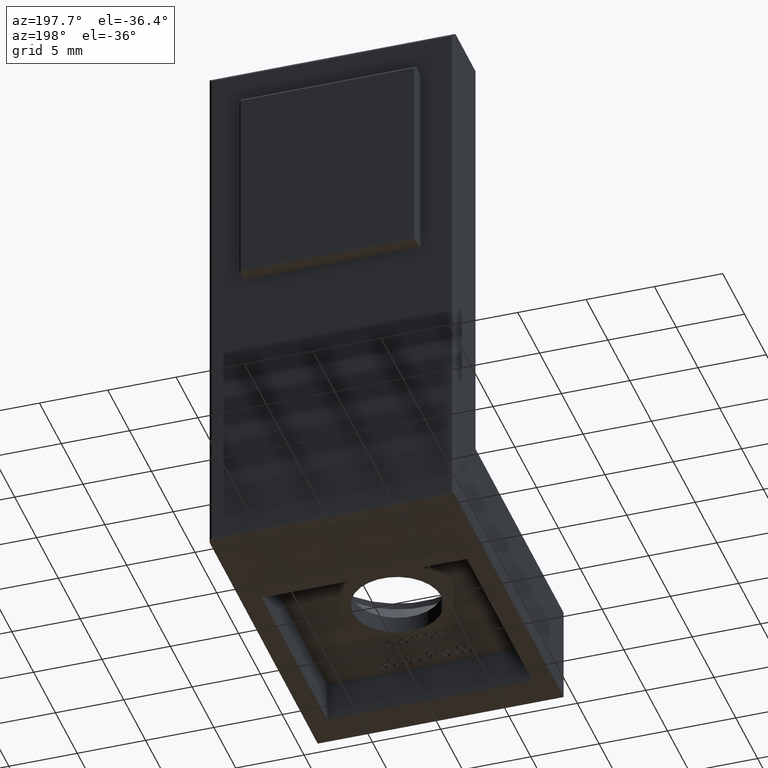
[diagram: clean part render]
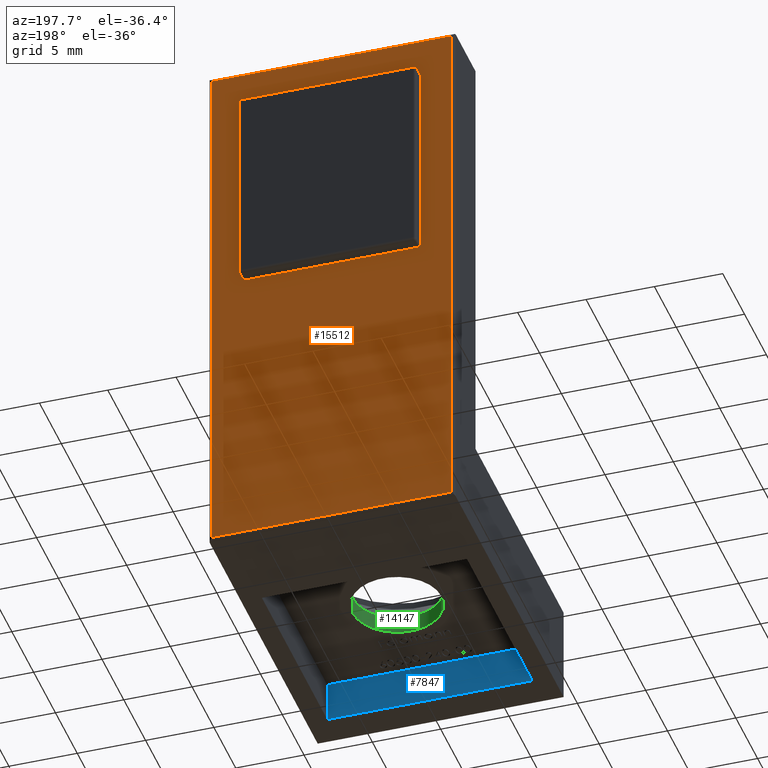
[diagram: same view with three faces highlighted in distinct colors, each labeled with its STEP entity id]
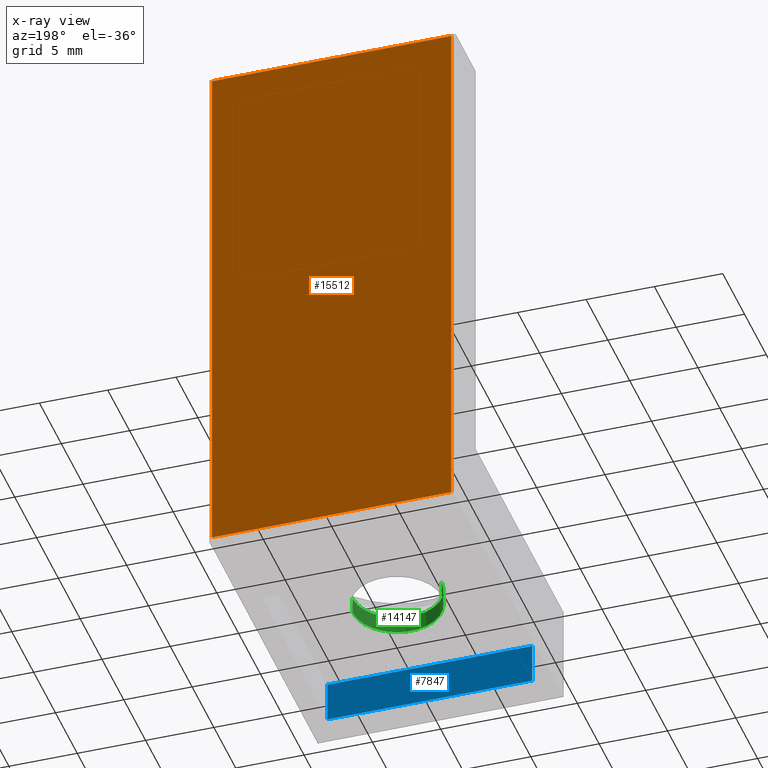
[diagram: x-ray of the same camera — body ghosted, the three highlighted faces saturated]
A machine part, auxiliary view with three faces highlighted in distinct colors.
The next image is the same camera in x-ray (body ghosted, the three faces saturated) — at least one of them is partly hidden behind the body in this view.
Their STEP definitions:

[orange] entity #15512 — the highlighted planar face has unit normal (0, -1, 0).
#397 = LINE ( 'NONE', #1953, #8488 ) ;
#896 = ORIENTED_EDGE ( 'NONE', *, *, #15491, .T. ) ;
#1683 = CARTESIAN_POINT ( 'NONE',  ( 8.749999999999998200, 0.0000000000000000000, 39.75000000000000000 ) ) ;
#1762 = LINE ( 'NONE', #8232, #6409 ) ;
#1953 = CARTESIAN_POINT ( 'NONE',  ( 9.000000000000000000, 0.0000000000000000000, 0.2500000000000002200 ) ) ;
#1993 = DIRECTION ( 'NONE',  ( 0.0000000000000000000, -1.000000000000000000, 0.0000000000000000000 ) ) ;
#2597 = CARTESIAN_POINT ( 'NONE',  ( -8.749999999999998200, 0.0000000000000000000, 39.75000000000000000 ) ) ;
#4138 = EDGE_CURVE ( 'NONE', #5710, #10450, #10113, .T. ) ;
#4388 = DIRECTION ( 'NONE',  ( 0.0000000000000000000, -0.0000000000000000000, -1.000000000000000000 ) ) ;
#4586 = FACE_OUTER_BOUND ( 'NONE', #13860, .T. ) ;
#5710 = VERTEX_POINT ( 'NONE', #1683 ) ;
#6178 = LINE ( 'NONE', #7821, #14798 ) ;
#6368 = ORIENTED_EDGE ( 'NONE', *, *, #4138, .T. ) ;
#6409 = VECTOR ( 'NONE', #15975, 1000.000000000000000 ) ;
#6666 = EDGE_CURVE ( 'NONE', #10450, #8684, #397, .T. ) ;
#6988 = PLANE ( 'NONE',  #8217 ) ;
#7553 = DIRECTION ( 'NONE',  ( -0.0000000000000000000, -0.0000000000000000000, -1.000000000000000000 ) ) ;
#7596 = ORIENTED_EDGE ( 'NONE', *, *, #6666, .T. ) ;
#7821 = CARTESIAN_POINT ( 'NONE',  ( -8.749999999999998200, 0.0000000000000000000, 40.00000000000000000 ) ) ;
#8217 = AXIS2_PLACEMENT_3D ( 'NONE', #15917, #1993, #4388 ) ;
#8232 = CARTESIAN_POINT ( 'NONE',  ( 9.000000000000000000, 0.0000000000000000000, 39.75000000000000000 ) ) ;
#8488 = VECTOR ( 'NONE', #12380, 1000.000000000000000 ) ;
#8684 = VERTEX_POINT ( 'NONE', #13302 ) ;
#9389 = ORIENTED_EDGE ( 'NONE', *, *, #10345, .T. ) ;
#10113 = LINE ( 'NONE', #11477, #11347 ) ;
#10345 = EDGE_CURVE ( 'NONE', #8684, #11887, #6178, .T. ) ;
#10378 = DIRECTION ( 'NONE',  ( 0.0000000000000000000, 0.0000000000000000000, 1.000000000000000000 ) ) ;
#10450 = VERTEX_POINT ( 'NONE', #14565 ) ;
#11347 = VECTOR ( 'NONE', #7553, 1000.000000000000000 ) ;
#11477 = CARTESIAN_POINT ( 'NONE',  ( 8.749999999999998200, 0.0000000000000000000, 40.00000000000000000 ) ) ;
#11887 = VERTEX_POINT ( 'NONE', #2597 ) ;
#12380 = DIRECTION ( 'NONE',  ( -1.000000000000000000, 0.0000000000000000000, 0.0000000000000000000 ) ) ;
#13302 = CARTESIAN_POINT ( 'NONE',  ( -8.749999999999998200, 0.0000000000000000000, 0.2500000000000002200 ) ) ;
#13860 = EDGE_LOOP ( 'NONE', ( #6368, #7596, #9389, #896 ) ) ;
#14565 = CARTESIAN_POINT ( 'NONE',  ( 8.749999999999998200, 0.0000000000000000000, 0.2500000000000002200 ) ) ;
#14798 = VECTOR ( 'NONE', #10378, 1000.000000000000000 ) ;
#15491 = EDGE_CURVE ( 'NONE', #11887, #5710, #1762, .T. ) ;
#15512 = ADVANCED_FACE ( 'NONE', ( #4586 ), #6988, .F. ) ;
#15917 = CARTESIAN_POINT ( 'NONE',  ( 9.000000000000000000, 0.0000000000000000000, 40.00000000000000000 ) ) ;
#15975 = DIRECTION ( 'NONE',  ( 1.000000000000000000, -0.0000000000000000000, -0.0000000000000000000 ) ) ;

[blue] entity #7847 — the highlighted planar face has unit normal (0, -1, -0).
#924 = LINE ( 'NONE', #2121, #10776 ) ;
#1019 = VERTEX_POINT ( 'NONE', #6654 ) ;
#1956 = EDGE_CURVE ( 'NONE', #1019, #14307, #12835, .T. ) ;
#2000 = VECTOR ( 'NONE', #8466, 1000.000000000000000 ) ;
#2010 = CARTESIAN_POINT ( 'NONE',  ( -7.499999999999996400, -22.49999999999999300, 2.999999999999995600 ) ) ;
#2082 = PLANE ( 'NONE',  #9347 ) ;
#2092 = EDGE_CURVE ( 'NONE', #11269, #14307, #13225, .T. ) ;
#2121 = CARTESIAN_POINT ( 'NONE',  ( 7.499999999999996400, -22.49999999999999300, 2.999999999999995600 ) ) ;
#2787 = CARTESIAN_POINT ( 'NONE',  ( 7.499999999999996400, -22.49999999999999300, 2.999999999999995600 ) ) ;
#3167 = ORIENTED_EDGE ( 'NONE', *, *, #2092, .T. ) ;
#3232 = FACE_OUTER_BOUND ( 'NONE', #14271, .T. ) ;
#3238 = DIRECTION ( 'NONE',  ( 0.0000000000000000000, -1.000000000000000000, -1.982541115402065100E-016 ) ) ;
#4335 = CARTESIAN_POINT ( 'NONE',  ( 7.499999999999996400, -22.49999999999999300, -4.460717509654644700E-015 ) ) ;
#4737 = ORIENTED_EDGE ( 'NONE', *, *, #11321, .F. ) ;
#5994 = VERTEX_POINT ( 'NONE', #8485 ) ;
#6654 = CARTESIAN_POINT ( 'NONE',  ( -7.499999999999996400, -22.49999999999999300, 2.999999999999995600 ) ) ;
#7811 = LINE ( 'NONE', #2787, #12400 ) ;
#7847 = ADVANCED_FACE ( 'NONE', ( #3232 ), #2082, .F. ) ;
#8466 = DIRECTION ( 'NONE',  ( -0.0000000000000000000, 1.982541115402065100E-016, -1.000000000000000000 ) ) ;
#8485 = CARTESIAN_POINT ( 'NONE',  ( 7.499999999999996400, -22.49999999999999300, 2.999999999999995600 ) ) ;
#8669 = ORIENTED_EDGE ( 'NONE', *, *, #10748, .T. ) ;
#9347 = AXIS2_PLACEMENT_3D ( 'NONE', #10958, #3238, #13523 ) ;
#9850 = DIRECTION ( 'NONE',  ( -1.000000000000000000, 0.0000000000000000000, 0.0000000000000000000 ) ) ;
#10358 = DIRECTION ( 'NONE',  ( -1.000000000000000000, 0.0000000000000000000, 0.0000000000000000000 ) ) ;
#10748 = EDGE_CURVE ( 'NONE', #5994, #11269, #7811, .T. ) ;
#10776 = VECTOR ( 'NONE', #9850, 1000.000000000000000 ) ;
#10958 = CARTESIAN_POINT ( 'NONE',  ( 7.499999999999996400, -22.49999999999999300, 2.999999999999995600 ) ) ;
#11037 = VECTOR ( 'NONE', #10358, 1000.000000000000000 ) ;
#11269 = VERTEX_POINT ( 'NONE', #4335 ) ;
#11321 = EDGE_CURVE ( 'NONE', #5994, #1019, #924, .T. ) ;
#11683 = DIRECTION ( 'NONE',  ( -0.0000000000000000000, 1.982541115402065100E-016, -1.000000000000000000 ) ) ;
#12400 = VECTOR ( 'NONE', #11683, 1000.000000000000000 ) ;
#12835 = LINE ( 'NONE', #2010, #2000 ) ;
#13225 = LINE ( 'NONE', #14070, #11037 ) ;
#13523 = DIRECTION ( 'NONE',  ( 0.0000000000000000000, 1.982541115402065100E-016, -1.000000000000000000 ) ) ;
#14070 = CARTESIAN_POINT ( 'NONE',  ( 7.499999999999996400, -22.49999999999999300, -4.460717509654644700E-015 ) ) ;
#14271 = EDGE_LOOP ( 'NONE', ( #3167, #14612, #4737, #8669 ) ) ;
#14307 = VERTEX_POINT ( 'NONE', #14997 ) ;
#14612 = ORIENTED_EDGE ( 'NONE', *, *, #1956, .F. ) ;
#14997 = CARTESIAN_POINT ( 'NONE',  ( -7.499999999999996400, -22.49999999999999300, -4.460717509654644700E-015 ) ) ;

[green] entity #14147 — the highlighted cylindrical surface (partial cylindrical patch) has radius 3.25 mm, axis along (-0, -0, 1).
#224 = VERTEX_POINT ( 'NONE', #8185 ) ;
#387 = EDGE_CURVE ( 'NONE', #9078, #11435, #6001, .T. ) ;
#1273 = DIRECTION ( 'NONE',  ( -0.0000000000000000000, -0.0000000000000000000, 1.000000000000000000 ) ) ;
#1747 = CIRCLE ( 'NONE', #12143, 3.249999999999999600 ) ;
#1770 = DIRECTION ( 'NONE',  ( 0.0000000000000000000, 1.000000000000000000, 1.334402673828313300E-016 ) ) ;
#1947 = CARTESIAN_POINT ( 'NONE',  ( -3.249999999999997800, -15.00000000000000000, 7.500000000000000900 ) ) ;
#2114 = ORIENTED_EDGE ( 'NONE', *, *, #10347, .F. ) ;
#2367 = CARTESIAN_POINT ( 'NONE',  ( 3.250000000000001300, -15.00000000000000000, 2.999999999999997300 ) ) ;
#4522 = CIRCLE ( 'NONE', #6784, 3.250000000000000900 ) ;
#5898 = CYLINDRICAL_SURFACE ( 'NONE', #6042, 3.249999999999999600 ) ;
#6001 = LINE ( 'NONE', #16389, #10621 ) ;
#6042 = AXIS2_PLACEMENT_3D ( 'NONE', #15473, #11953, #8087 ) ;
#6166 = CARTESIAN_POINT ( 'NONE',  ( -3.249999999999997800, -15.00000000000000000, 2.999999999999997300 ) ) ;
#6322 = EDGE_CURVE ( 'NONE', #12717, #224, #7078, .T. ) ;
#6661 = VECTOR ( 'NONE', #8465, 1000.000000000000000 ) ;
#6784 = AXIS2_PLACEMENT_3D ( 'NONE', #7866, #1273, #16636 ) ;
#7078 = LINE ( 'NONE', #1947, #6661 ) ;
#7787 = ORIENTED_EDGE ( 'NONE', *, *, #12775, .T. ) ;
#7866 = CARTESIAN_POINT ( 'NONE',  ( 1.836970198721029600E-015, -15.00000000000000000, 4.250000000000002700 ) ) ;
#8087 = DIRECTION ( 'NONE',  ( 1.000000000000000000, 0.0000000000000000000, 0.0000000000000000000 ) ) ;
#8185 = CARTESIAN_POINT ( 'NONE',  ( -3.249999999999999100, -15.00000000000000000, 4.250000000000002700 ) ) ;
#8465 = DIRECTION ( 'NONE',  ( -0.0000000000000000000, -0.0000000000000000000, 1.000000000000000000 ) ) ;
#9078 = VERTEX_POINT ( 'NONE', #2367 ) ;
#9297 = ORIENTED_EDGE ( 'NONE', *, *, #387, .F. ) ;
#10347 = EDGE_CURVE ( 'NONE', #12717, #9078, #1747, .T. ) ;
#10621 = VECTOR ( 'NONE', #11324, 1000.000000000000000 ) ;
#11324 = DIRECTION ( 'NONE',  ( -0.0000000000000000000, -0.0000000000000000000, 1.000000000000000000 ) ) ;
#11435 = VERTEX_POINT ( 'NONE', #12929 ) ;
#11953 = DIRECTION ( 'NONE',  ( -0.0000000000000000000, -0.0000000000000000000, 1.000000000000000000 ) ) ;
#12143 = AXIS2_PLACEMENT_3D ( 'NONE', #14190, #15471, #1770 ) ;
#12328 = FACE_OUTER_BOUND ( 'NONE', #15078, .T. ) ;
#12493 = ORIENTED_EDGE ( 'NONE', *, *, #6322, .T. ) ;
#12717 = VERTEX_POINT ( 'NONE', #6166 ) ;
#12775 = EDGE_CURVE ( 'NONE', #224, #11435, #4522, .T. ) ;
#12929 = CARTESIAN_POINT ( 'NONE',  ( 3.250000000000002700, -15.00000000000000000, 4.250000000000002700 ) ) ;
#14147 = ADVANCED_FACE ( 'NONE', ( #12328 ), #5898, .F. ) ;
#14190 = CARTESIAN_POINT ( 'NONE',  ( 1.836970198721029600E-015, -15.00000000000000000, 2.999999999999997300 ) ) ;
#15078 = EDGE_LOOP ( 'NONE', ( #2114, #12493, #7787, #9297 ) ) ;
#15471 = DIRECTION ( 'NONE',  ( -0.0000000000000000000, -1.982541115402064900E-016, 1.000000000000000000 ) ) ;
#15473 = CARTESIAN_POINT ( 'NONE',  ( 1.836970198721029600E-015, -15.00000000000000000, 7.500000000000000900 ) ) ;
#16389 = CARTESIAN_POINT ( 'NONE',  ( 3.250000000000001300, -15.00000000000000000, 7.500000000000000900 ) ) ;
#16636 = DIRECTION ( 'NONE',  ( 1.000000000000000000, 0.0000000000000000000, 0.0000000000000000000 ) ) ;